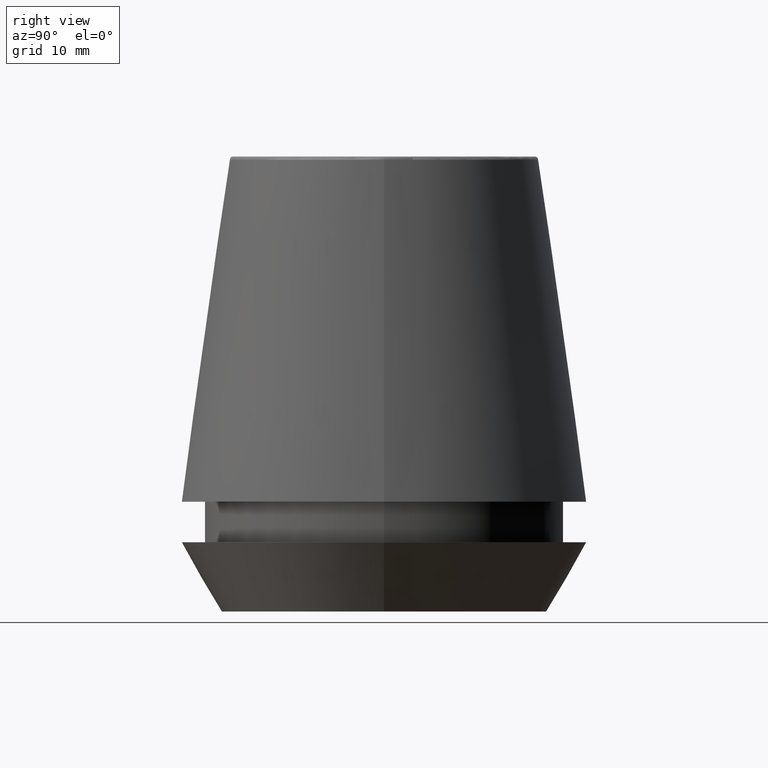
[diagram: clean part render]
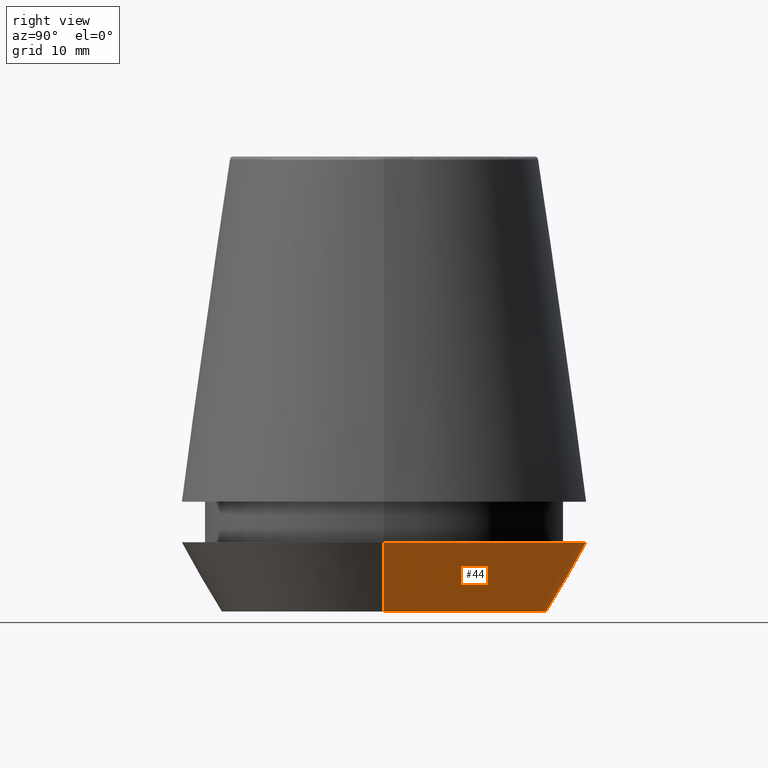
[diagram: same view with one face highlighted and labeled with its STEP entity id]
A machine part, right view. The second image highlights one B-rep face of the part: STEP entity #44.
In plain terms, the highlighted conical surface has half-angle 30 deg.
Its self-contained STEP definition (entity closure, byte-faithful):
#15 = VERTEX_POINT ( 'NONE', #368 ) ;
#25 = AXIS2_PLACEMENT_3D ( 'NONE', #352, #234, #27 ) ;
#27 = DIRECTION ( 'NONE',  ( 1.000000000000000000, 0.0000000000000000000, 0.0000000000000000000 ) ) ;
#31 = VECTOR ( 'NONE', #138, 1000.000000000000000 ) ;
#44 = ADVANCED_FACE ( 'NONE', ( #48 ), #308, .T. ) ;
#45 = EDGE_CURVE ( 'NONE', #307, #120, #317, .T. ) ;
#46 = DIRECTION ( 'NONE',  ( 1.000000000000000000, 0.0000000000000000000, 0.0000000000000000000 ) ) ;
#48 = FACE_OUTER_BOUND ( 'NONE', #134, .T. ) ;
#51 = VERTEX_POINT ( 'NONE', #90 ) ;
#58 = EDGE_CURVE ( 'NONE', #15, #51, #130, .T. ) ;
#60 = EDGE_CURVE ( 'NONE', #307, #15, #191, .T. ) ;
#90 = CARTESIAN_POINT ( 'NONE',  ( -20.50000000000000000, 2.510525938252074100E-015, 7.000000000000006200 ) ) ;
#101 = ORIENTED_EDGE ( 'NONE', *, *, #58, .T. ) ;
#110 = DIRECTION ( 'NONE',  ( 1.000000000000000000, 0.0000000000000000000, 0.0000000000000000000 ) ) ;
#112 = CARTESIAN_POINT ( 'NONE',  ( -16.45854811567268100, 2.015590826847124800E-015, 0.0000000000000000000 ) ) ;
#120 = VERTEX_POINT ( 'NONE', #284 ) ;
#130 = LINE ( 'NONE', #112, #309 ) ;
#134 = EDGE_LOOP ( 'NONE', ( #168, #101, #381, #203 ) ) ;
#138 = DIRECTION ( 'NONE',  ( 0.4999999999999941700, 0.0000000000000000000, 0.8660254037844420400 ) ) ;
#168 = ORIENTED_EDGE ( 'NONE', *, *, #60, .T. ) ;
#190 = CARTESIAN_POINT ( 'NONE',  ( 0.0000000000000000000, 0.0000000000000000000, 0.0000000000000000000 ) ) ;
#191 = CIRCLE ( 'NONE', #374, 16.45854811567268100 ) ;
#193 = CARTESIAN_POINT ( 'NONE',  ( 16.45854811567268100, 0.0000000000000000000, 0.0000000000000000000 ) ) ;
#203 = ORIENTED_EDGE ( 'NONE', *, *, #45, .F. ) ;
#231 = DIRECTION ( 'NONE',  ( -0.0000000000000000000, -0.0000000000000000000, 1.000000000000000000 ) ) ;
#234 = DIRECTION ( 'NONE',  ( -0.0000000000000000000, -0.0000000000000000000, 1.000000000000000000 ) ) ;
#246 = CIRCLE ( 'NONE', #25, 20.50000000000000000 ) ;
#255 = EDGE_CURVE ( 'NONE', #120, #51, #246, .T. ) ;
#284 = CARTESIAN_POINT ( 'NONE',  ( 20.50000000000000000, 0.0000000000000000000, 7.000000000000006200 ) ) ;
#307 = VERTEX_POINT ( 'NONE', #385 ) ;
#308 = CONICAL_SURFACE ( 'NONE', #366, 16.45854811567268100, 0.5235987755982921500 ) ;
#309 = VECTOR ( 'NONE', #359, 1000.000000000000000 ) ;
#317 = LINE ( 'NONE', #193, #31 ) ;
#334 = DIRECTION ( 'NONE',  ( -0.0000000000000000000, -0.0000000000000000000, 1.000000000000000000 ) ) ;
#352 = CARTESIAN_POINT ( 'NONE',  ( 0.0000000000000000000, 0.0000000000000000000, 7.000000000000006200 ) ) ;
#359 = DIRECTION ( 'NONE',  ( -0.4999999999999941700, 6.123233995736694500E-017, 0.8660254037844420400 ) ) ;
#360 = CARTESIAN_POINT ( 'NONE',  ( 0.0000000000000000000, 0.0000000000000000000, 0.0000000000000000000 ) ) ;
#366 = AXIS2_PLACEMENT_3D ( 'NONE', #360, #334, #46 ) ;
#368 = CARTESIAN_POINT ( 'NONE',  ( -16.45854811567268100, 2.263058382549599700E-015, 0.0000000000000000000 ) ) ;
#374 = AXIS2_PLACEMENT_3D ( 'NONE', #190, #231, #110 ) ;
#381 = ORIENTED_EDGE ( 'NONE', *, *, #255, .F. ) ;
#385 = CARTESIAN_POINT ( 'NONE',  ( 16.45854811567268100, 0.0000000000000000000, 0.0000000000000000000 ) ) ;